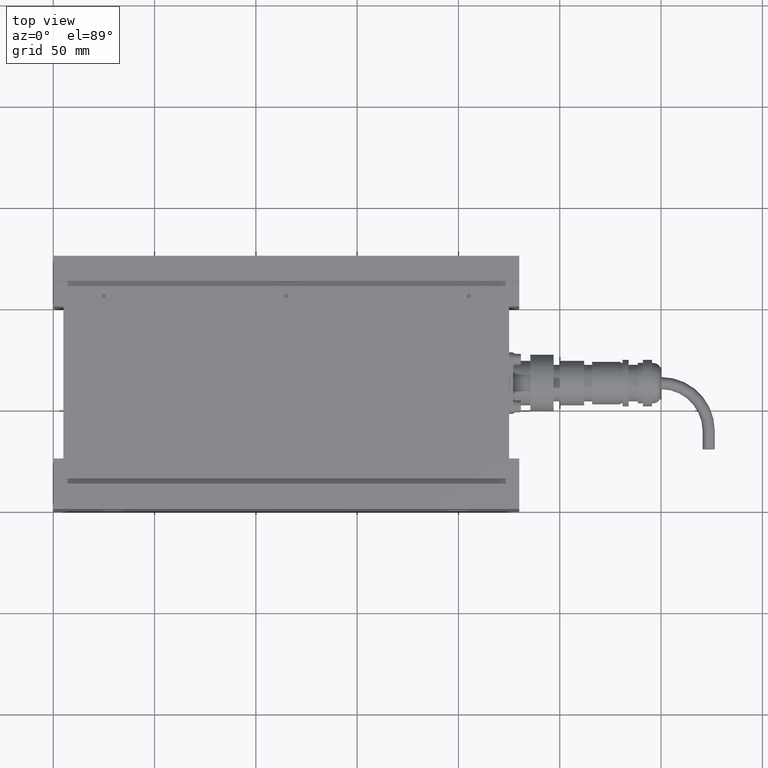
[diagram: clean part render]
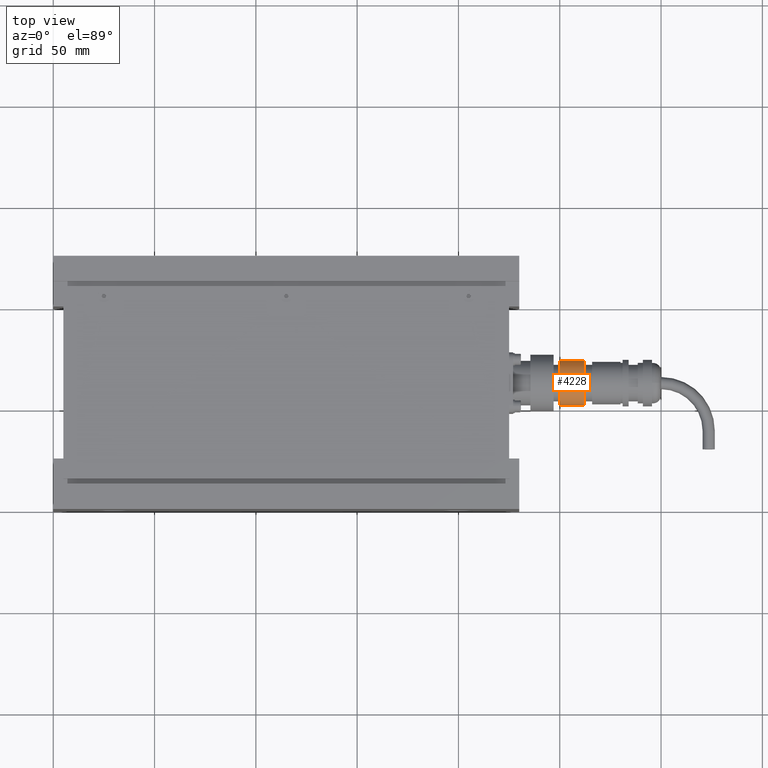
[diagram: same view with one face highlighted and labeled with its STEP entity id]
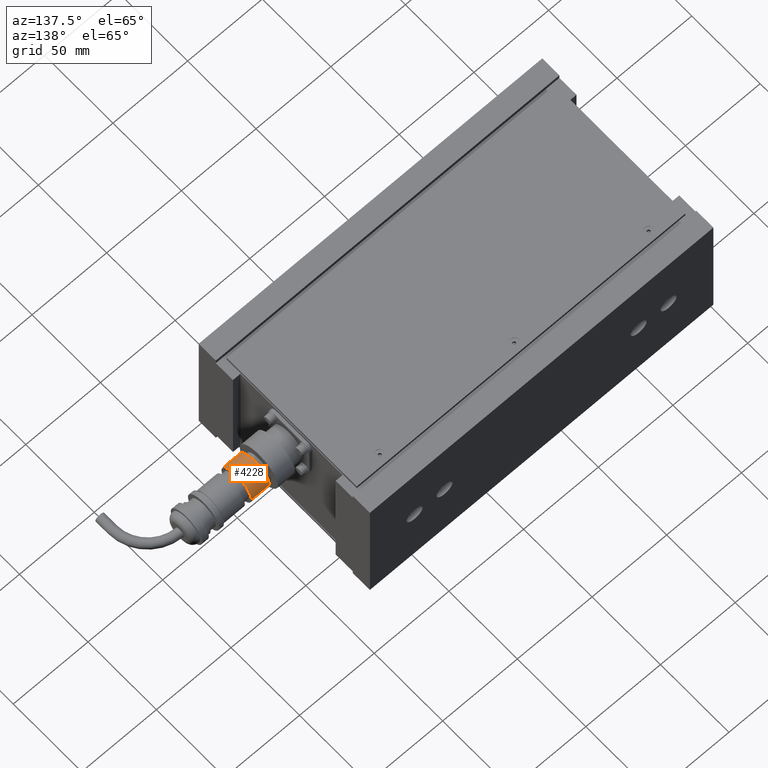
[diagram: same view with one face highlighted and labeled with its STEP entity id]
A machine part, top view. The second image highlights one B-rep face of the part: STEP entity #4228.
A second angle (auxiliary view) of the same face is appended — the face is thin or edge-on in the first view.
In plain terms, the highlighted cylindrical surface (edge-blend (fillet) strip) has radius 11 mm, axis along (1, 0, -0).
Its self-contained STEP definition (entity closure, byte-faithful):
#4187=CARTESIAN_POINT('',(-2.063341E-015,39.250000000000369,0.0));
#4188=DIRECTION('',(0.0,1.0,0.0));
#4189=DIRECTION('',(-1.0,0.0,0.0));
#4190=AXIS2_PLACEMENT_3D('',#4187,#4188,#4189);
#4191=CYLINDRICAL_SURFACE('',#4190,11.000000000000004);
#4192=CARTESIAN_POINT('',(-11.000000000000007,45.250000000000256,0.0));
#4193=VERTEX_POINT('',#4192);
#4194=CARTESIAN_POINT('',(-11.000000000000004,33.250000000000483,0.0));
#4195=VERTEX_POINT('',#4194);
#4196=CARTESIAN_POINT('',(-11.000000000000007,45.250000000000256,0.0));
#4197=DIRECTION('',(0.0,-1.0,0.0));
#4198=VECTOR('',#4197,11.999999999999773);
#4199=LINE('',#4196,#4198);
#4200=EDGE_CURVE('',#4193,#4195,#4199,.T.);
#4201=ORIENTED_EDGE('',*,*,#4200,.F.);
#4202=CARTESIAN_POINT('',(11.000000000000002,45.250000000000256,-1.347067E-015));
#4203=VERTEX_POINT('',#4202);
#4204=CARTESIAN_POINT('',(-2.063341E-015,45.250000000000256,0.0));
#4205=DIRECTION('',(0.0,1.0,0.0));
#4206=DIRECTION('',(-1.0,0.0,0.0));
#4207=AXIS2_PLACEMENT_3D('',#4204,#4205,#4206);
#4208=CIRCLE('',#4207,11.000000000000005);
#4209=EDGE_CURVE('',#4203,#4193,#4208,.T.);
#4210=ORIENTED_EDGE('',*,*,#4209,.F.);
#4211=CARTESIAN_POINT('',(11.000000000000002,33.250000000000483,-1.347067E-015));
#4212=VERTEX_POINT('',#4211);
#4213=CARTESIAN_POINT('',(11.000000000000002,45.250000000000256,-1.347067E-015));
#4214=DIRECTION('',(0.0,-1.0,0.0));
#4215=VECTOR('',#4214,11.999999999999773);
#4216=LINE('',#4213,#4215);
#4217=EDGE_CURVE('',#4203,#4212,#4216,.T.);
#4218=ORIENTED_EDGE('',*,*,#4217,.T.);
#4219=CARTESIAN_POINT('',(-2.063341E-015,33.250000000000483,0.0));
#4220=DIRECTION('',(0.0,1.0,0.0));
#4221=DIRECTION('',(-1.0,0.0,0.0));
#4222=AXIS2_PLACEMENT_3D('',#4219,#4220,#4221);
#4223=CIRCLE('',#4222,11.000000000000002);
#4224=EDGE_CURVE('',#4212,#4195,#4223,.T.);
#4225=ORIENTED_EDGE('',*,*,#4224,.T.);
#4226=EDGE_LOOP('',(#4201,#4210,#4218,#4225));
#4227=FACE_OUTER_BOUND('',#4226,.T.);
#4228=ADVANCED_FACE('',(#4227),#4191,.T.);